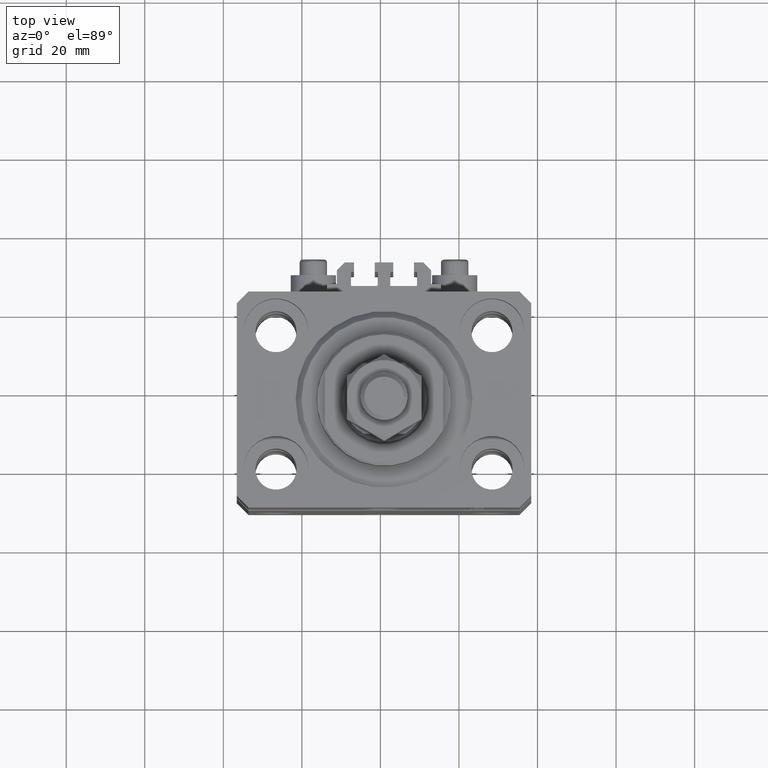
[diagram: clean part render]
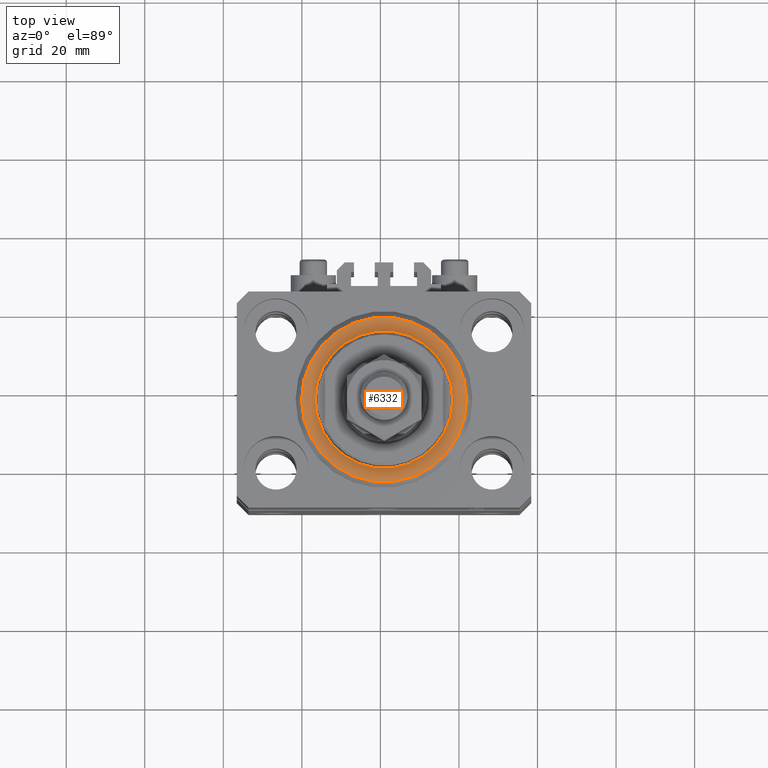
[diagram: same view with one face highlighted and labeled with its STEP entity id]
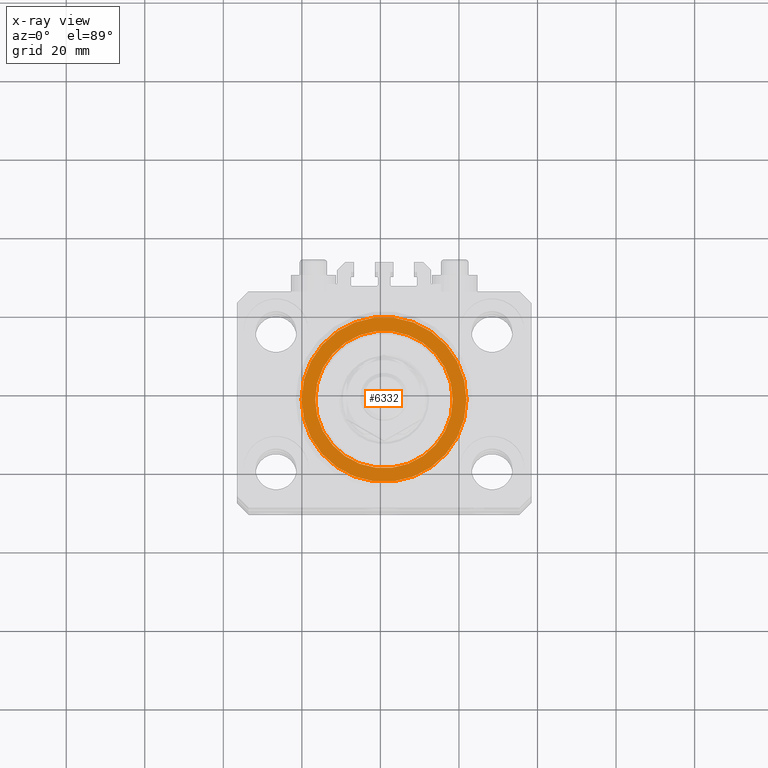
[diagram: x-ray of the same camera — body ghosted, the highlighted face saturated]
A machine part, top view. The second image highlights one B-rep face of the part: STEP entity #6332.
The next image is the same camera in x-ray: the body ghosted, the highlighted face saturated — about 0% of this face is hidden behind the body in this view.
In plain terms, the highlighted planar face has unit normal (0, 0, -1).
Its self-contained STEP definition (entity closure, byte-faithful):
#3 = CARTESIAN_POINT ( 'NONE',  ( 0.000000000000000000, 0.000000000000000000, 0.000000000000000000 ) ) ;
#118 = CARTESIAN_POINT ( 'NONE',  ( 0.000000000000000000, 0.000000000000000000, 0.000000000000000000 ) ) ;
#2694 = CARTESIAN_POINT ( 'NONE',  ( 20.99999999999998934, 0.000000000000000000, 0.000000000000000000 ) ) ;
#2949 = ORIENTED_EDGE ( 'NONE', *, *, #28575, .T. ) ;
#3189 = ORIENTED_EDGE ( 'NONE', *, *, #14615, .T. ) ;
#4366 = FACE_BOUND ( 'NONE', #45417, .T. ) ;
#4904 = AXIS2_PLACEMENT_3D ( 'NONE', #3, #22784, #45284 ) ;
#5544 = DIRECTION ( 'NONE',  ( 1.000000000000000000, 0.000000000000000000, 0.000000000000000000 ) ) ;
#5594 = CIRCLE ( 'NONE', #38320, 20.99999999999998934 ) ;
#6332 = ADVANCED_FACE ( 'NONE', ( #4366, #38877 ), #15618, .F. ) ;
#6567 = DIRECTION ( 'NONE',  ( 1.000000000000000000, 0.000000000000000000, 0.000000000000000000 ) ) ;
#6982 = VERTEX_POINT ( 'NONE', #15203 ) ;
#7292 = CIRCLE ( 'NONE', #10465, 17.50000000000000000 ) ;
#9856 = CARTESIAN_POINT ( 'NONE',  ( 0.000000000000000000, 0.000000000000000000, 0.000000000000000000 ) ) ;
#9870 = EDGE_CURVE ( 'NONE', #18373, #22128, #5594, .T. ) ;
#10465 = AXIS2_PLACEMENT_3D ( 'NONE', #9856, #21620, #29133 ) ;
#11876 = ORIENTED_EDGE ( 'NONE', *, *, #28969, .T. ) ;
#12583 = CARTESIAN_POINT ( 'NONE',  ( -17.50000000000000000, 2.143131898507868643E-15, -2.168404344971008868E-16 ) ) ;
#14615 = EDGE_CURVE ( 'NONE', #23654, #6982, #17726, .T. ) ;
#15203 = CARTESIAN_POINT ( 'NONE',  ( 17.50000000000000000, 0.000000000000000000, -2.168404344971008868E-16 ) ) ;
#15276 = CIRCLE ( 'NONE', #4904, 20.99999999999998934 ) ;
#15618 = PLANE ( 'NONE',  #30357 ) ;
#15870 = DIRECTION ( 'NONE',  ( 0.000000000000000000, 0.000000000000000000, 1.000000000000000000 ) ) ;
#17726 = CIRCLE ( 'NONE', #45676, 17.50000000000000000 ) ;
#18373 = VERTEX_POINT ( 'NONE', #2694 ) ;
#21620 = DIRECTION ( 'NONE',  ( 0.000000000000000000, 0.000000000000000000, 1.000000000000000000 ) ) ;
#21828 = DIRECTION ( 'NONE',  ( -0.000000000000000000, -0.000000000000000000, -1.000000000000000000 ) ) ;
#22128 = VERTEX_POINT ( 'NONE', #41682 ) ;
#22784 = DIRECTION ( 'NONE',  ( -0.000000000000000000, -0.000000000000000000, -1.000000000000000000 ) ) ;
#23073 = EDGE_LOOP ( 'NONE', ( #30051, #11876 ) ) ;
#23654 = VERTEX_POINT ( 'NONE', #12583 ) ;
#28575 = EDGE_CURVE ( 'NONE', #6982, #23654, #7292, .T. ) ;
#28969 = EDGE_CURVE ( 'NONE', #22128, #18373, #15276, .T. ) ;
#29133 = DIRECTION ( 'NONE',  ( 1.000000000000000000, 0.000000000000000000, 0.000000000000000000 ) ) ;
#30051 = ORIENTED_EDGE ( 'NONE', *, *, #9870, .T. ) ;
#30357 = AXIS2_PLACEMENT_3D ( 'NONE', #34893, #15870, #31406 ) ;
#31406 = DIRECTION ( 'NONE',  ( 1.000000000000000000, 0.000000000000000000, -0.000000000000000000 ) ) ;
#34893 = CARTESIAN_POINT ( 'NONE',  ( 0.000000000000000000, 0.000000000000000000, 0.000000000000000000 ) ) ;
#36070 = DIRECTION ( 'NONE',  ( 0.000000000000000000, 0.000000000000000000, 1.000000000000000000 ) ) ;
#38320 = AXIS2_PLACEMENT_3D ( 'NONE', #48086, #21828, #6567 ) ;
#38877 = FACE_OUTER_BOUND ( 'NONE', #23073, .T. ) ;
#41682 = CARTESIAN_POINT ( 'NONE',  ( -20.99999999999998934, 2.663606788145492628E-15, 0.000000000000000000 ) ) ;
#45284 = DIRECTION ( 'NONE',  ( 1.000000000000000000, 0.000000000000000000, 0.000000000000000000 ) ) ;
#45417 = EDGE_LOOP ( 'NONE', ( #2949, #3189 ) ) ;
#45676 = AXIS2_PLACEMENT_3D ( 'NONE', #118, #36070, #5544 ) ;
#48086 = CARTESIAN_POINT ( 'NONE',  ( 0.000000000000000000, 0.000000000000000000, 0.000000000000000000 ) ) ;